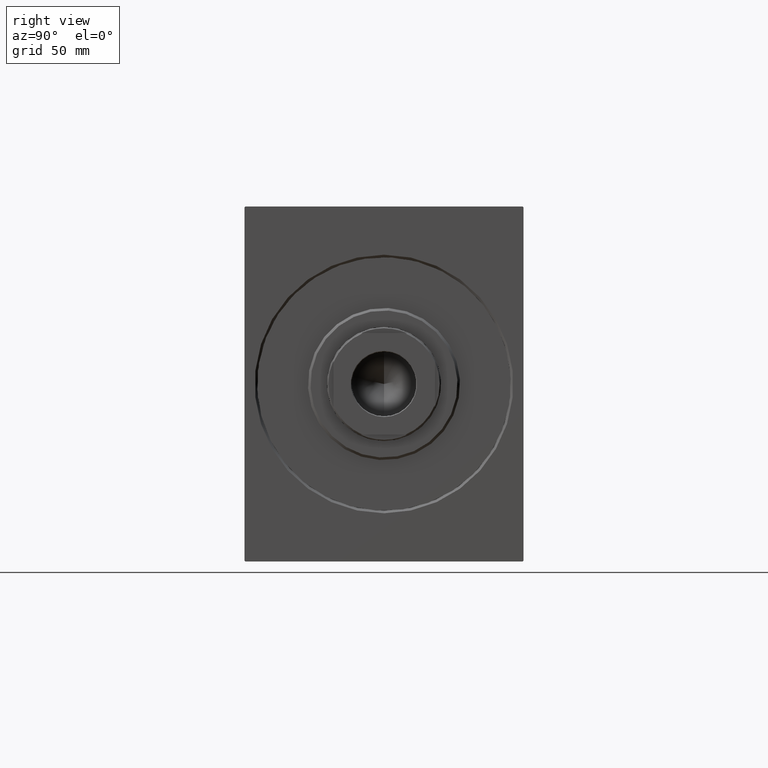
[diagram: clean part render]
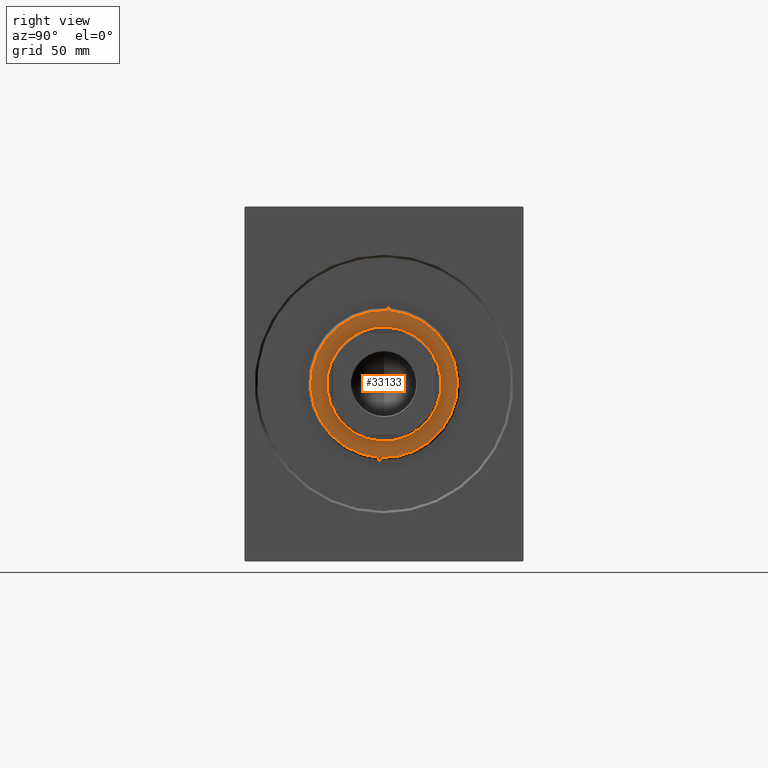
[diagram: same view with one face highlighted and labeled with its STEP entity id]
A machine part, right view. The second image highlights one B-rep face of the part: STEP entity #33133.
In plain terms, the highlighted planar face has unit normal (1, -0, -0).
Its self-contained STEP definition (entity closure, byte-faithful):
#960 = VERTEX_POINT ( 'NONE', #43580 ) ;
#1063 = FACE_BOUND ( 'NONE', #28596, .T. ) ;
#2348 = VERTEX_POINT ( 'NONE', #4951 ) ;
#3757 = VERTEX_POINT ( 'NONE', #29446 ) ;
#4494 = CIRCLE ( 'NONE', #32808, 28.99999999999999289 ) ;
#4951 = CARTESIAN_POINT ( 'NONE',  ( 3.000000000000000000, 2.755455298081545172E-15, 22.50000000000000355 ) ) ;
#5266 = DIRECTION ( 'NONE',  ( 0.000000000000000000, 0.000000000000000000, -1.000000000000000000 ) ) ;
#7029 = FACE_OUTER_BOUND ( 'NONE', #37672, .T. ) ;
#7435 = EDGE_CURVE ( 'NONE', #10990, #960, #40134, .T. ) ;
#9385 = CARTESIAN_POINT ( 'NONE',  ( 3.000000000000000000, 0.000000000000000000, 0.000000000000000000 ) ) ;
#10990 = VERTEX_POINT ( 'NONE', #42549 ) ;
#11894 = DIRECTION ( 'NONE',  ( 1.000000000000000000, 0.000000000000000000, 0.000000000000000000 ) ) ;
#14549 = PLANE ( 'NONE',  #19427 ) ;
#15882 = CARTESIAN_POINT ( 'NONE',  ( 3.000000000000000000, 0.000000000000000000, 0.000000000000000000 ) ) ;
#19427 = AXIS2_PLACEMENT_3D ( 'NONE', #24285, #38270, #23841 ) ;
#19661 = EDGE_CURVE ( 'NONE', #3757, #2348, #42550, .T. ) ;
#19744 = ORIENTED_EDGE ( 'NONE', *, *, #25810, .T. ) ;
#22868 = ORIENTED_EDGE ( 'NONE', *, *, #19661, .F. ) ;
#22894 = DIRECTION ( 'NONE',  ( 1.000000000000000000, -0.000000000000000000, 0.000000000000000000 ) ) ;
#23841 = DIRECTION ( 'NONE',  ( 0.000000000000000000, 0.000000000000000000, -1.000000000000000000 ) ) ;
#24285 = CARTESIAN_POINT ( 'NONE',  ( 3.000000000000000000, 0.000000000000000000, 0.000000000000000000 ) ) ;
#24618 = AXIS2_PLACEMENT_3D ( 'NONE', #36187, #39528, #32437 ) ;
#25810 = EDGE_CURVE ( 'NONE', #960, #10990, #4494, .T. ) ;
#28596 = EDGE_LOOP ( 'NONE', ( #22868, #38223 ) ) ;
#28983 = DIRECTION ( 'NONE',  ( 0.000000000000000000, 0.000000000000000000, -1.000000000000000000 ) ) ;
#29446 = CARTESIAN_POINT ( 'NONE',  ( 3.000000000000000000, 0.000000000000000000, -22.50000000000000355 ) ) ;
#31894 = CARTESIAN_POINT ( 'NONE',  ( 3.000000000000000000, 0.000000000000000000, 0.000000000000000000 ) ) ;
#32437 = DIRECTION ( 'NONE',  ( 0.000000000000000000, 0.000000000000000000, -1.000000000000000000 ) ) ;
#32808 = AXIS2_PLACEMENT_3D ( 'NONE', #9385, #22894, #36423 ) ;
#33114 = CIRCLE ( 'NONE', #24618, 22.50000000000000355 ) ;
#33133 = ADVANCED_FACE ( 'NONE', ( #7029, #1063 ), #14549, .T. ) ;
#34021 = ORIENTED_EDGE ( 'NONE', *, *, #7435, .T. ) ;
#36187 = CARTESIAN_POINT ( 'NONE',  ( 3.000000000000000000, 0.000000000000000000, 0.000000000000000000 ) ) ;
#36423 = DIRECTION ( 'NONE',  ( 0.000000000000000000, 0.000000000000000000, -1.000000000000000000 ) ) ;
#36878 = AXIS2_PLACEMENT_3D ( 'NONE', #15882, #11894, #5266 ) ;
#37270 = AXIS2_PLACEMENT_3D ( 'NONE', #31894, #38970, #28983 ) ;
#37672 = EDGE_LOOP ( 'NONE', ( #19744, #34021 ) ) ;
#38223 = ORIENTED_EDGE ( 'NONE', *, *, #42824, .F. ) ;
#38270 = DIRECTION ( 'NONE',  ( 1.000000000000000000, -0.000000000000000000, 0.000000000000000000 ) ) ;
#38970 = DIRECTION ( 'NONE',  ( 1.000000000000000000, -0.000000000000000000, 0.000000000000000000 ) ) ;
#39528 = DIRECTION ( 'NONE',  ( 1.000000000000000000, 0.000000000000000000, 0.000000000000000000 ) ) ;
#40134 = CIRCLE ( 'NONE', #37270, 28.99999999999999289 ) ;
#42549 = CARTESIAN_POINT ( 'NONE',  ( 3.000000000000000000, 3.612708057484691604E-15, -28.99999999999999289 ) ) ;
#42550 = CIRCLE ( 'NONE', #36878, 22.50000000000000355 ) ;
#42824 = EDGE_CURVE ( 'NONE', #2348, #3757, #33114, .T. ) ;
#43580 = CARTESIAN_POINT ( 'NONE',  ( 3.000000000000000000, 0.000000000000000000, 28.99999999999999289 ) ) ;